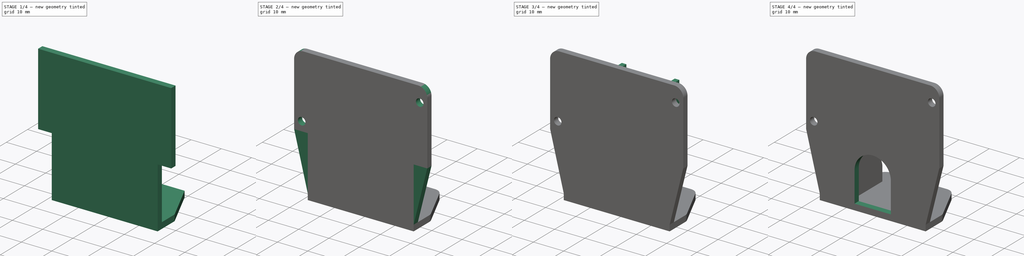
[diagram: build sequence overview — one tinted view per stage of 4, left to right]
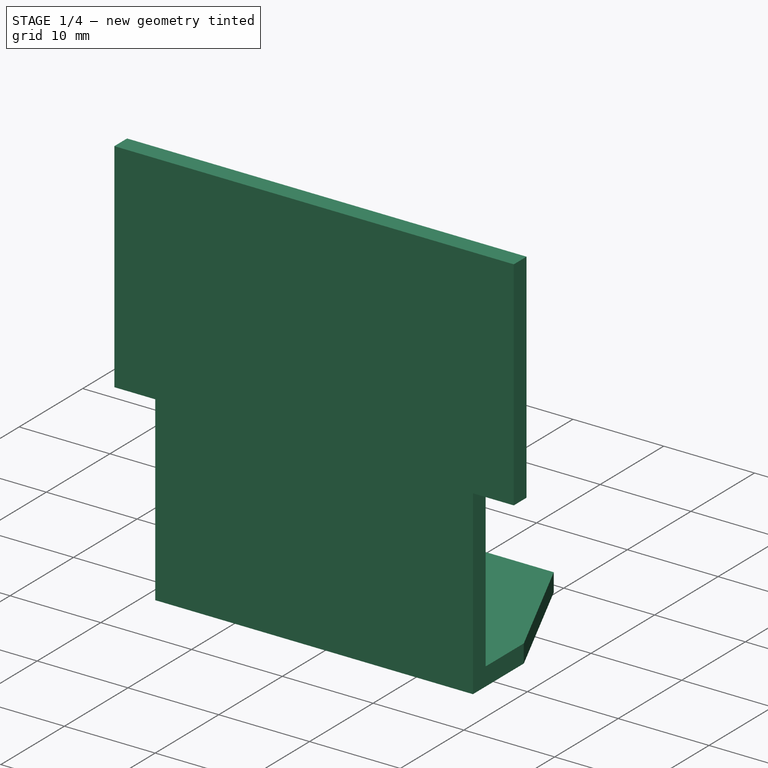
[diagram: stage 1 of 4 — iso view after this stage's code; geometry added in this stage tinted green]
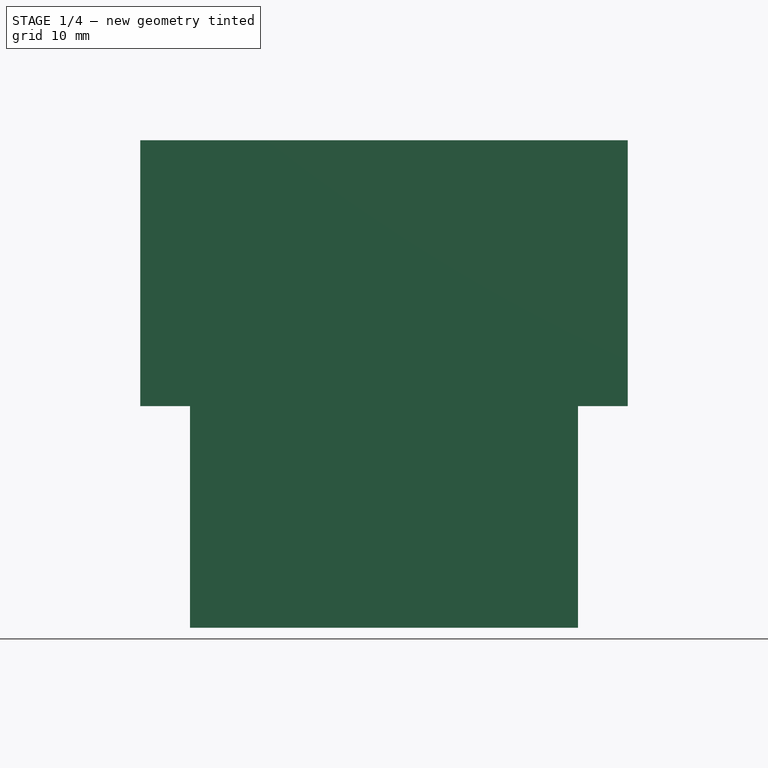
[diagram: stage 1 of 4 — front view after this stage's code; geometry added in this stage tinted green]
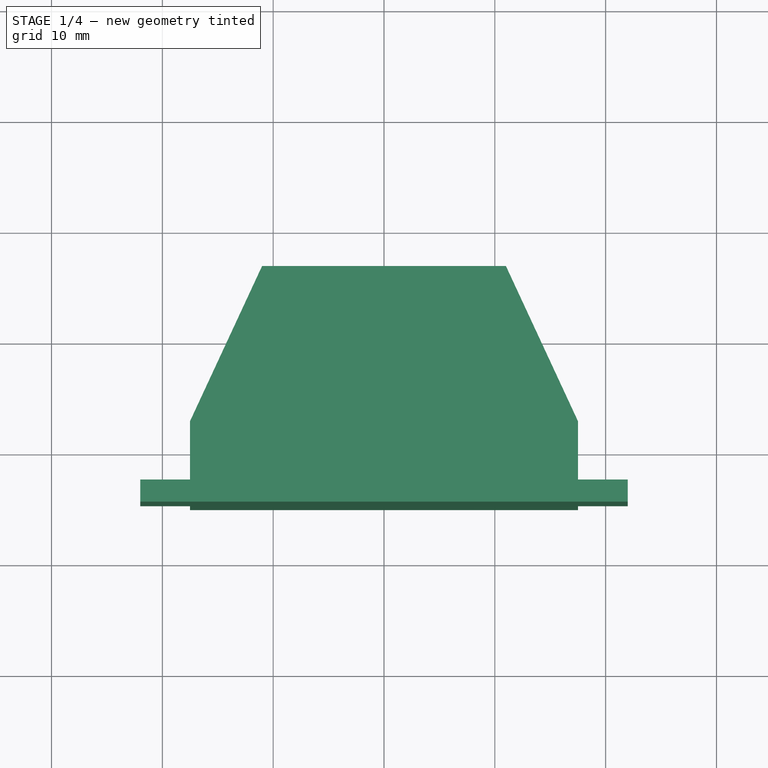
[diagram: stage 1 of 4 — top view after this stage's code; geometry added in this stage tinted green]
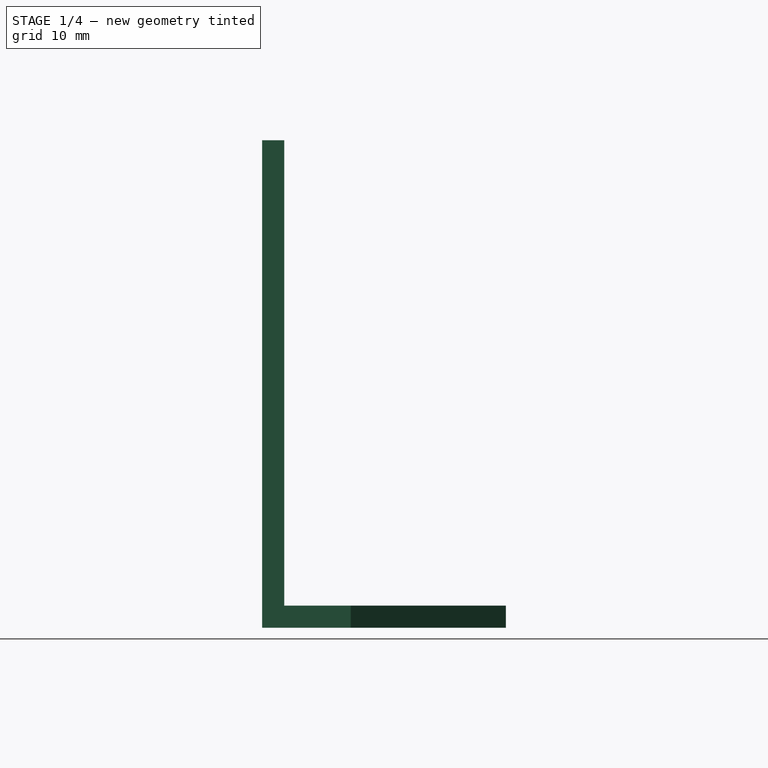
[diagram: stage 1 of 4 — right view after this stage's code; geometry added in this stage tinted green]
FCSTD DOCUMENT  (FreeCAD 0.21R33771 (Git))
Label: support_ultrasons-v1
License: All rights reserved
LicenseURL: http://en.wikipedia.org/wiki/All_rights_reserved
objects: Sketcher::SketchObject×7, PartDesign::Pad×4, PartDesign::Pocket×3, PartDesign::Chamfer×2, PartDesign::Fillet×2, PartDesign::Body×1
note: 30 computed .brp shape members not serialized (recipe doc carries the construction recipe); baked Part::Feature solids carry a one-line shape summary decoded from their .brp

FEATURE [Sketcher::SketchObject] Sketch
  FullyConstrained = true
  MapMode = 5
  Support = -> [XY_Plane]
  sketch-geometry (6):
    g0: LineSegment StartX=-17.5 StartY=-15 StartZ=0 EndX=17.5 EndY=-15 EndZ=0
    g1: LineSegment StartX=17.5 StartY=-15 StartZ=0 EndX=17.5 EndY=-7 EndZ=0
    g2: LineSegment StartX=17.5 StartY=-7 StartZ=0 EndX=11 EndY=7 EndZ=0
    g3: LineSegment StartX=11 StartY=7 StartZ=0 EndX=-11 EndY=7 EndZ=0
    g4: LineSegment StartX=-17.5 StartY=-7 StartZ=0 EndX=-17.5 EndY=-15 EndZ=0
    g5: LineSegment StartX=-11 StartY=7 StartZ=0 EndX=-17.5 EndY=-7 EndZ=0
  constraints (18):
    c: Horizontal(g0)
    c: Coincident(g1,g0)
    c: Vertical(g1)
    c: Coincident(g2,g1)
    c: Coincident(g3,g2)
    c: Horizontal(g3)
    c: Coincident(g4,g0)
    c: Vertical(g4)
    c: Coincident(g5,g3)
    c: Coincident(g5,g4)
    c: DistanceY(g0,g2) = 22
    c: DistanceX(g3,g3) = 22
    c: DistanceX(g0,g0) = 35
    c: Equal(g2,g5)
    c: Equal(g1,g4)
    c: DistanceY(g1,g1) = 8
    c: DistanceX(g-1,g0) = 17.5
    c: DistanceY(g0,g-1) = 15
FEATURE [PartDesign::Pad] Pad
  Direction = (0,0,1)
  Length = 2
  Length2 = 10
  Profile = -> Sketch
  ReferenceAxis = -> Sketch [N_Axis]
  Type = 0
FEATURE [Sketcher::SketchObject] Sketch001
  ExternalGeometry = -> [Pad]
  FullyConstrained = true
  MapMode = 5
  Placement = pos=(0,0,2) rot=(0,0,1;0rad)
  Support = -> [Pad]
  sketch-geometry (4):
    g0: LineSegment StartX=-17.5 StartY=-15 StartZ=0 EndX=17.5 EndY=-15 EndZ=0
    g1: LineSegment StartX=17.5 StartY=-15 StartZ=0 EndX=17.5 EndY=-13 EndZ=0
    g2: LineSegment StartX=17.5 StartY=-13 StartZ=0 EndX=-17.5 EndY=-13 EndZ=0
    g3: LineSegment StartX=-17.5 StartY=-13 StartZ=0 EndX=-17.5 EndY=-15 EndZ=0
  constraints (11):
    c: Coincident(g0,g1)
    c: Coincident(g1,g2)
    c: Coincident(g2,g3)
    c: Coincident(g3,g0)
    c: Horizontal(g0)
    c: Horizontal(g2)
    c: Vertical(g1)
    c: Vertical(g3)
    c: Coincident(g0,g-3)
    c: DistanceY(g1,g1) = 2
    c: DistanceX(g2,g2) = 35
FEATURE [PartDesign::Pad] Pad001
  BaseFeature = -> Pad
  Direction = (0,0,1)
  Length = 18
  Length2 = 10
  Profile = -> Sketch001
  ReferenceAxis = -> Sketch001 [N_Axis]
  Type = 0
FEATURE [Sketcher::SketchObject] Sketch002
  ExternalGeometry = -> [Pad001]
  FullyConstrained = false
  MapMode = 5
  Placement = pos=(0,0,20) rot=(0,0,1;0rad)
  Support = -> [Pad001]
  sketch-geometry (7):
    g0: LineSegment StartX=-22 StartY=-13 StartZ=0 EndX=22 EndY=-13 EndZ=0
    g1: LineSegment StartX=22 StartY=-13 StartZ=0 EndX=22 EndY=-15 EndZ=0
    g2: LineSegment StartX=22 StartY=-15 StartZ=0 EndX=-22 EndY=-15 EndZ=0
    g3: LineSegment StartX=-22 StartY=-15 StartZ=0 EndX=-22 EndY=-13 EndZ=0
    g4: LineSegment StartX=-22 StartY=-13 StartZ=0 EndX=-17.5 EndY=-13 EndZ=0
    g5: LineSegment StartX=-22 StartY=-13 StartZ=0 EndX=-17.5 EndY=-15 EndZ=0
    g6: LineSegment StartX=22 StartY=-13 StartZ=0 EndX=17.5 EndY=-15 EndZ=0
  constraints (17):
    c: Coincident(g0,g1)
    c: Coincident(g1,g2)
    c: Coincident(g2,g3)
    c: Coincident(g3,g0)
    c: Horizontal(g0)
    c: Horizontal(g2)
    c: Vertical(g1)
    c: Vertical(g3)
    c: PointOnObject(g-4,g2)
    c: PointOnObject(g-3,g0)
    c: DistanceX(g2,g2) = 44
    c: Coincident(g4,g0)
    c: Coincident(g5,g0)
    c: Coincident(g5,g-4)
    c: Coincident(g6,g0)
    c: Coincident(g6,g-4)
    c: Equal(g6,g5)
FEATURE [PartDesign::Pad] Pad002
  BaseFeature = -> Pad001
  Direction = (0,0,1)
  Length = 24
  Length2 = 10
  Profile = -> Sketch002
  ReferenceAxis = -> Sketch002 [N_Axis]
  Type = 0
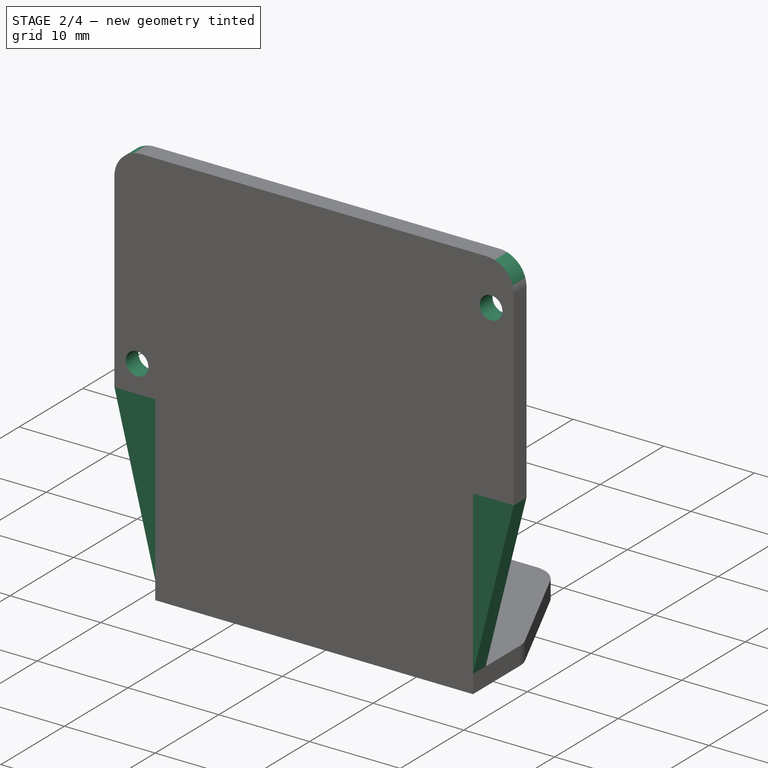
[diagram: stage 2 of 4 — iso view after this stage's code; geometry added in this stage tinted green]
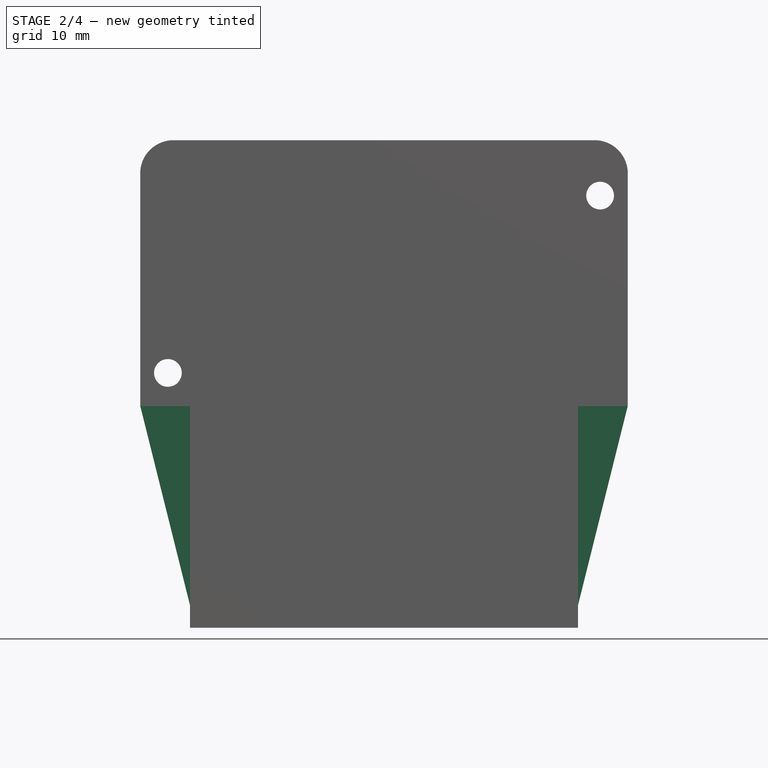
[diagram: stage 2 of 4 — front view after this stage's code; geometry added in this stage tinted green]
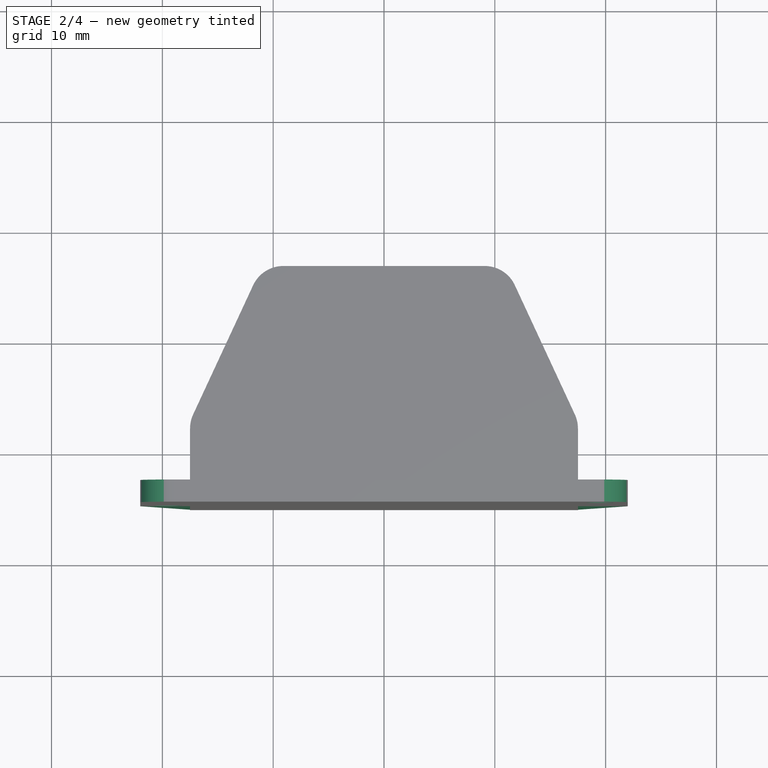
[diagram: stage 2 of 4 — top view after this stage's code; geometry added in this stage tinted green]
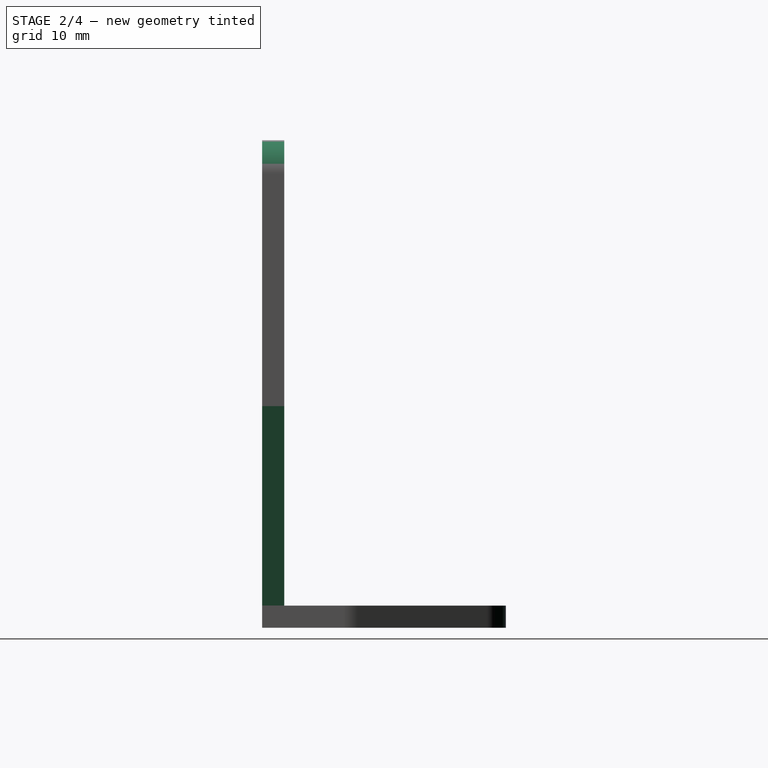
[diagram: stage 2 of 4 — right view after this stage's code; geometry added in this stage tinted green]
FEATURE [PartDesign::Chamfer] Chamfer
  Angle = 45
  Base = -> Pad002 [Edge13,Edge19]
  BaseFeature = -> Pad002
  ChamferType = 1
  FlipDirection = false
  Size = 4.49
  Size2 = 17.99
  SupportTransform = false
  UseAllEdges = false
FEATURE [PartDesign::Fillet] Fillet
  Base = -> Chamfer [Edge19,Edge43,Edge50,Edge48,Edge45,Edge18]
  BaseFeature = -> Chamfer
  Radius = 3
  SupportTransform = false
  UseAllEdges = false
FEATURE [Sketcher::SketchObject] Sketch003
  ExternalGeometry = -> [Fillet]
  FullyConstrained = true
  MapMode = 5
  Placement = pos=(0,-13,0) rot=(0,0.707107,0.707107;3.14159rad)
  Support = -> [Fillet]
  sketch-geometry (2):
    g0: Circle CenterX=-19.5 CenterY=39 CenterZ=0 NormalX=0 NormalY=0 NormalZ=1 AngleXU=0 Radius=1.25
    g1: Circle CenterX=19.5 CenterY=23 CenterZ=0 NormalX=0 NormalY=0 NormalZ=1 AngleXU=0 Radius=1.25
  constraints (6):
    c: Equal(g1,g0)
    c: DistanceX(g0,g1) = 39
    c: DistanceY(g1,g0) = 16
    c: Diameter(g1) = 2.5
    c: DistanceX(g-1,g1) = 19.5
    c: DistanceY(g-1,g0) = 39
FEATURE [PartDesign::Pocket] Pocket
  BaseFeature = -> Fillet
  Direction = (0,-1,2e-16)
  Length = 5
  Length2 = 5
  Profile = -> Sketch003
  ReferenceAxis = -> Sketch003 [N_Axis]
  Type = 0
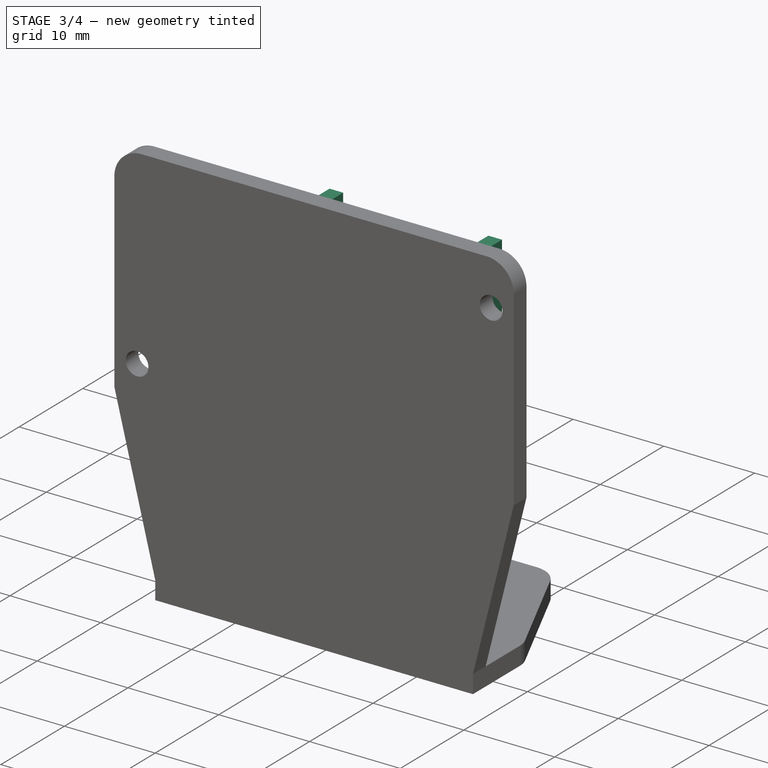
[diagram: stage 3 of 4 — iso view after this stage's code; geometry added in this stage tinted green]
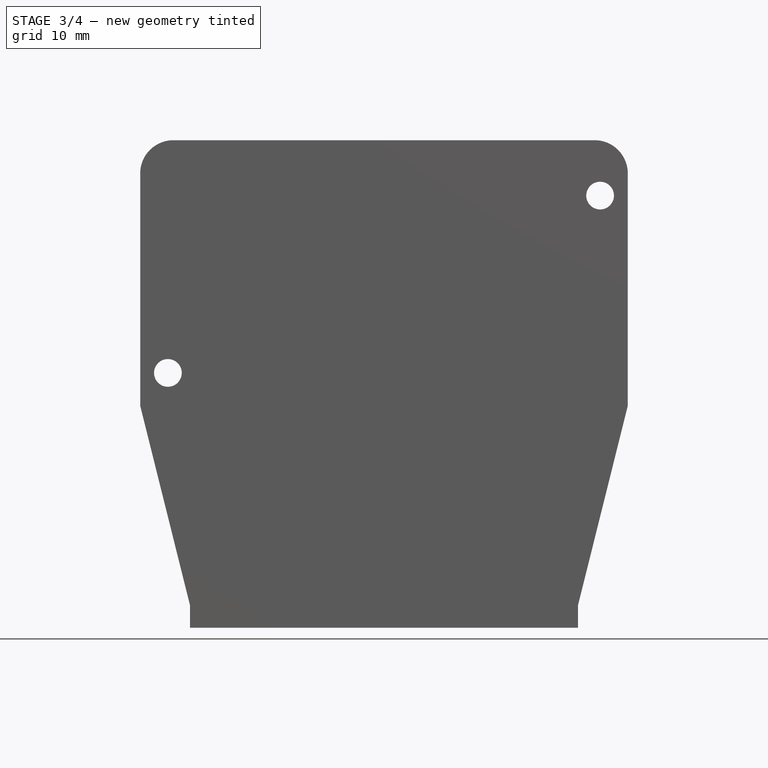
[diagram: stage 3 of 4 — front view after this stage's code; geometry added in this stage tinted green]
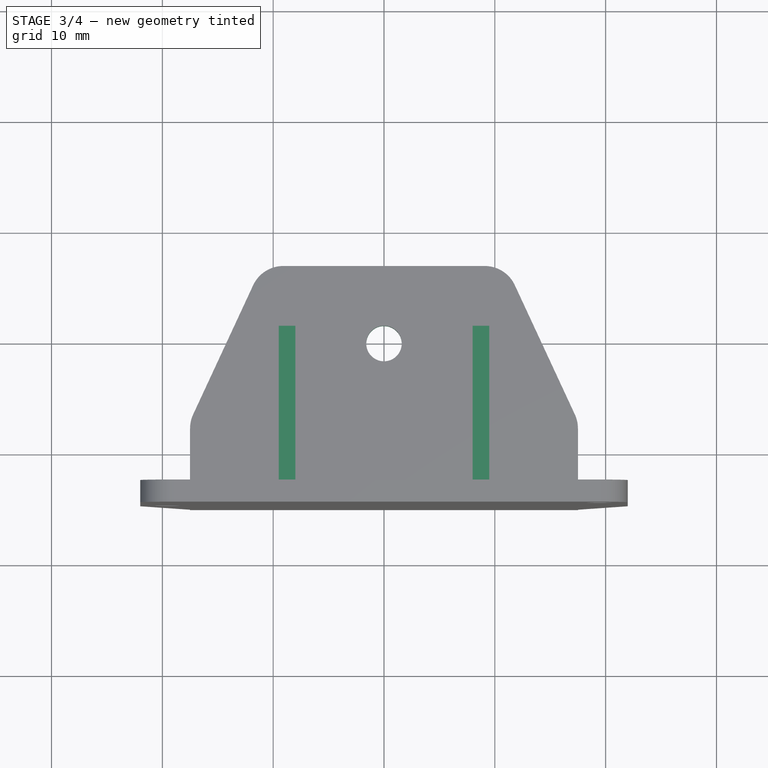
[diagram: stage 3 of 4 — top view after this stage's code; geometry added in this stage tinted green]
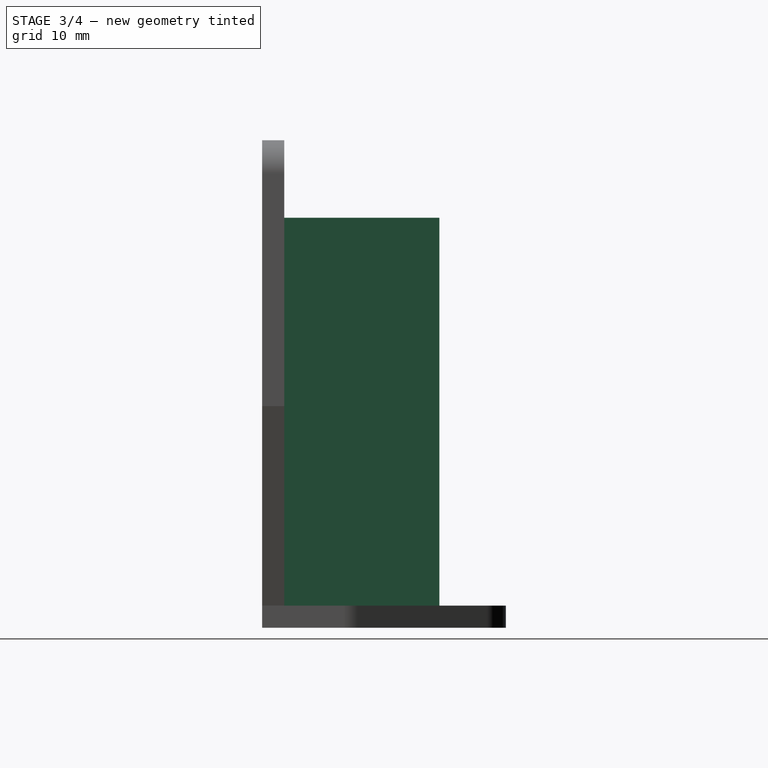
[diagram: stage 3 of 4 — right view after this stage's code; geometry added in this stage tinted green]
FEATURE [Sketcher::SketchObject] Sketch004
  ExternalGeometry = -> [Pocket]
  FullyConstrained = true
  MapMode = 5
  Placement = pos=(0,0,2) rot=(0,0,1;0rad)
  Support = -> [Pocket]
  sketch-geometry (1):
    g0: Circle CenterX=0 CenterY=0 CenterZ=0 NormalX=0 NormalY=0 NormalZ=1 AngleXU=0 Radius=1.6
  constraints (2):
    c: Coincident(g0,g-1)
    c: Diameter(g0) = 3.2
FEATURE [PartDesign::Pocket] Pocket001
  BaseFeature = -> Pocket
  Direction = (0,0,-1)
  Length = 5
  Length2 = 5
  Profile = -> Sketch004
  ReferenceAxis = -> Sketch004 [N_Axis]
  Type = 0
FEATURE [Sketcher::SketchObject] Sketch005
  ExternalGeometry = -> [Pocket001]
  FullyConstrained = true
  MapMode = 5
  Placement = pos=(0,0,2) rot=(0,0,1;0rad)
  Support = -> [Pocket001]
  sketch-geometry (8):
    g0: LineSegment StartX=-9.5 StartY=-13 StartZ=0 EndX=-8 EndY=-13 EndZ=0
    g1: LineSegment StartX=-8 StartY=-13 StartZ=0 EndX=-8 EndY=1 EndZ=0
    g2: LineSegment StartX=-8 StartY=1 StartZ=0 EndX=-9.5 EndY=1 EndZ=0
    g3: LineSegment StartX=-9.5 StartY=1 StartZ=0 EndX=-9.5 EndY=-13 EndZ=0
    g4: LineSegment StartX=8 StartY=-13 StartZ=0 EndX=9.5 EndY=-13 EndZ=0
    g5: LineSegment StartX=9.5 StartY=-13 StartZ=0 EndX=9.5 EndY=1 EndZ=0
    g6: LineSegment StartX=9.5 StartY=1 StartZ=0 EndX=8 EndY=1 EndZ=0
    g7: LineSegment StartX=8 StartY=1 StartZ=0 EndX=8 EndY=-13 EndZ=0
  constraints (23):
    c: Coincident(g0,g1)
    c: Coincident(g1,g2)
    c: Coincident(g2,g3)
    c: Coincident(g3,g0)
    c: Horizontal(g0)
    c: Horizontal(g2)
    c: Vertical(g1)
    c: Vertical(g3)
    c: PointOnObject(g0,g-3)
    c: Coincident(g4,g5)
    c: Coincident(g5,g6)
    c: Coincident(g6,g7)
    c: Coincident(g7,g4)
    c: Horizontal(g4)
    c: Horizontal(g6)
    c: Vertical(g5)
    c: Vertical(g7)
    c: PointOnObject(g4,g-3)
    c: Symmetric(g6,g1,g-2)
    c: Equal(g6,g2)
    c: DistanceX(g-1,g6) = 8
    c: DistanceX(g6,g6) = 1.5
    c: DistanceY(g5,g5) = 14
FEATURE [PartDesign::Pad] Pad003
  BaseFeature = -> Pocket001
  Direction = (0,0,1)
  Length = 35
  Length2 = 10
  Profile = -> Sketch005
  ReferenceAxis = -> Sketch005 [N_Axis]
  Type = 0
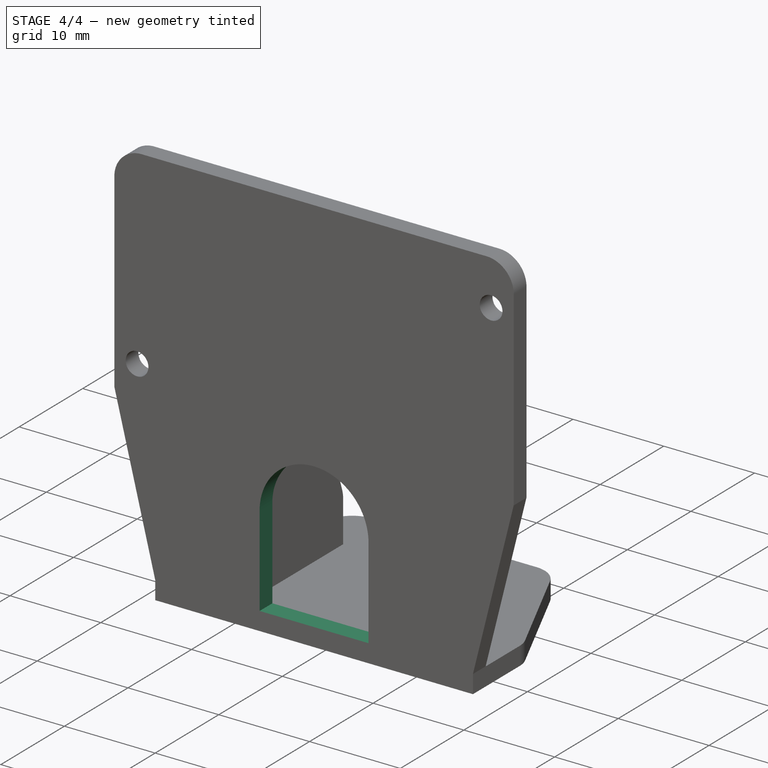
[diagram: stage 4 of 4 — iso view after this stage's code; geometry added in this stage tinted green]
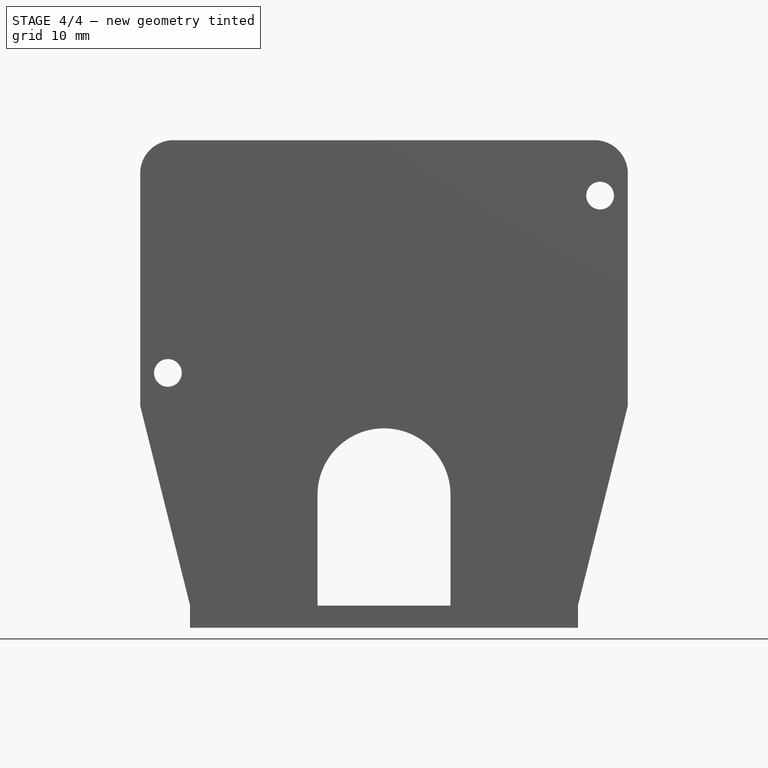
[diagram: stage 4 of 4 — front view after this stage's code; geometry added in this stage tinted green]
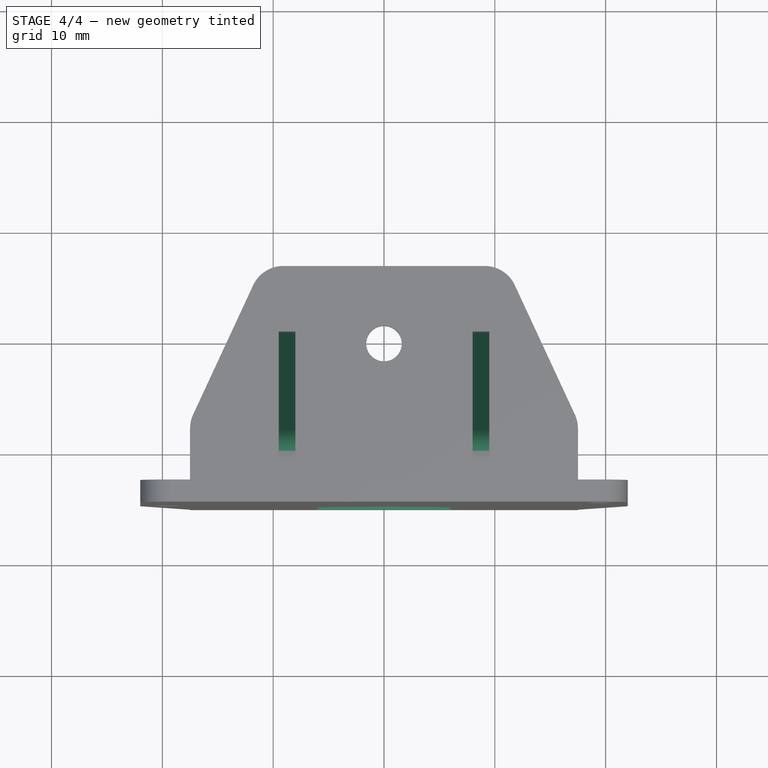
[diagram: stage 4 of 4 — top view after this stage's code; geometry added in this stage tinted green]
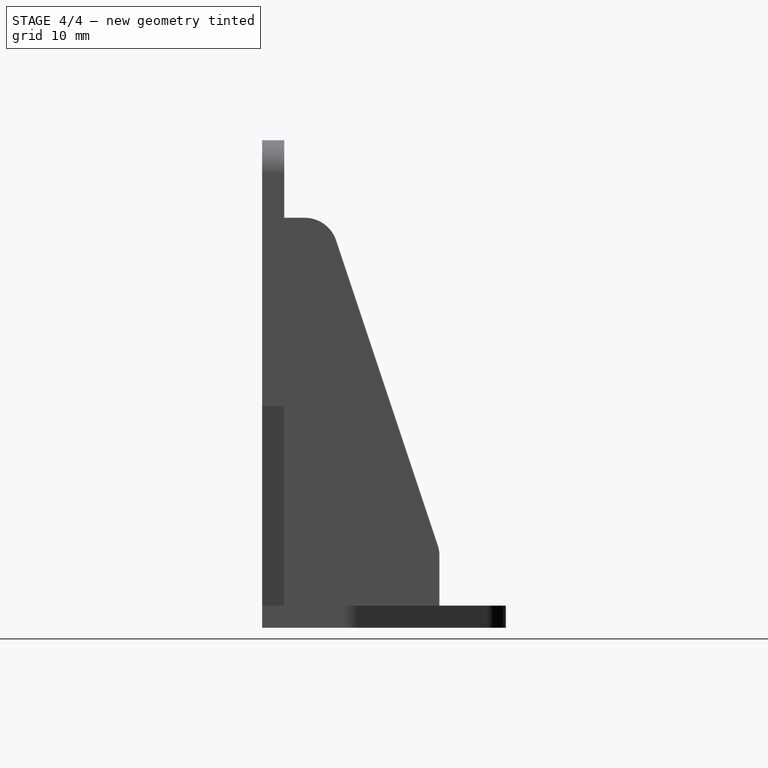
[diagram: stage 4 of 4 — right view after this stage's code; geometry added in this stage tinted green]
FEATURE [PartDesign::Chamfer] Chamfer001
  Angle = 45
  Base = -> Pad003 [Edge34,Edge44]
  BaseFeature = -> Pad003
  ChamferType = 1
  FlipDirection = false
  Size = 10
  Size2 = 30
  SupportTransform = false
  UseAllEdges = false
FEATURE [PartDesign::Fillet] Fillet001
  Base = -> Chamfer001 [Edge94,Edge11,Edge8,Edge76]
  BaseFeature = -> Chamfer001
  Radius = 3
  SupportTransform = false
  UseAllEdges = false
FEATURE [Sketcher::SketchObject] Sketch006
  ExternalGeometry = -> [Fillet001]
  FullyConstrained = true
  MapMode = 5
  Placement = pos=(0,-13,0) rot=(0,0.707107,0.707107;3.14159rad)
  Support = -> [Fillet001]
  sketch-geometry (4):
    g0: LineSegment StartX=-6 StartY=2 StartZ=0 EndX=-6 EndY=12 EndZ=0
    g1: LineSegment StartX=6 StartY=2 StartZ=0 EndX=6 EndY=12 EndZ=0
    g2: ArcOfCircle CenterX=-3e-16 CenterY=12 CenterZ=0 NormalX=0 NormalY=0 NormalZ=1 AngleXU=0 Radius=6 StartAngle=0 EndAngle=3.14159
    g3: LineSegment StartX=-6 StartY=2 StartZ=0 EndX=6 EndY=2 EndZ=0
  constraints (12):
    c: PointOnObject(g0,g-3)
    c: Vertical(g0)
    c: PointOnObject(g1,g-3)
    c: Vertical(g1)
    c: Symmetric(g1,g0,g-2)
    c: DistanceY(g1,g1) = 10
    c: Coincident(g2,g0)
    c: Coincident(g2,g1)
    c: Horizontal(g2,g1)
    c: Coincident(g3,g0)
    c: Coincident(g3,g1)
    c: DistanceX(g0,g1) = 12
FEATURE [PartDesign::Pocket] Pocket002
  BaseFeature = -> Fillet001
  Direction = (0,-1,2e-16)
  Length = 5
  Length2 = 5
  Profile = -> Sketch006
  ReferenceAxis = -> Sketch006 [N_Axis]
  Type = 0
FEATURE [PartDesign::Body] Body  label="support-ultrasons"
  Group = -> [Sketch,Pad,Sketch001,Pad001,Sketch002,Pad002,Chamfer,Fillet,Sketch003,Pocket,Sketch004,Pocket001,Sketch005,Pad003,Chamfer001,Fillet001,Sketch006,Pocket002]
  Origin = -> Origin
  Tip = -> Pocket002
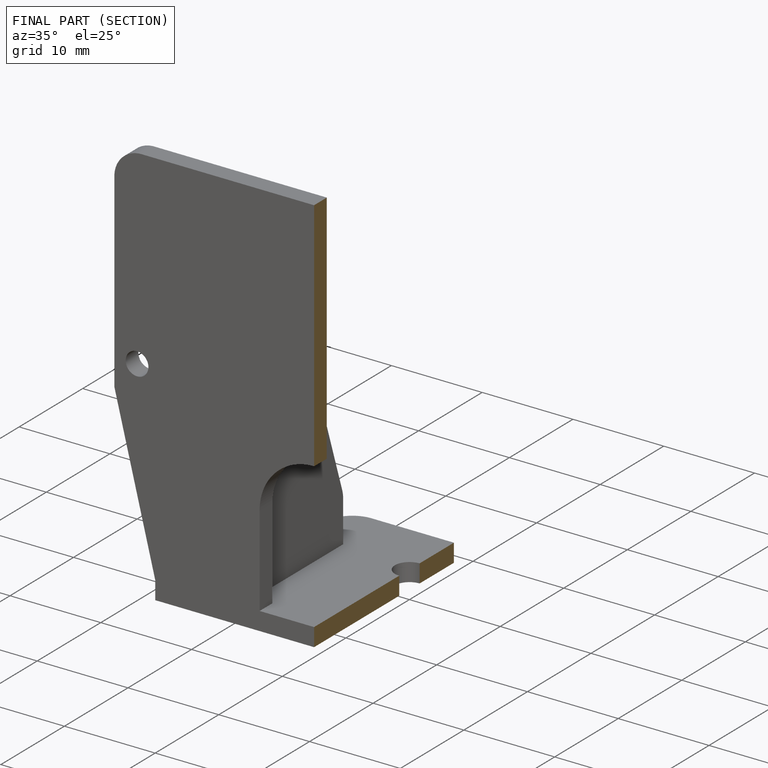
[diagram: finished part — half-section view (interior)]
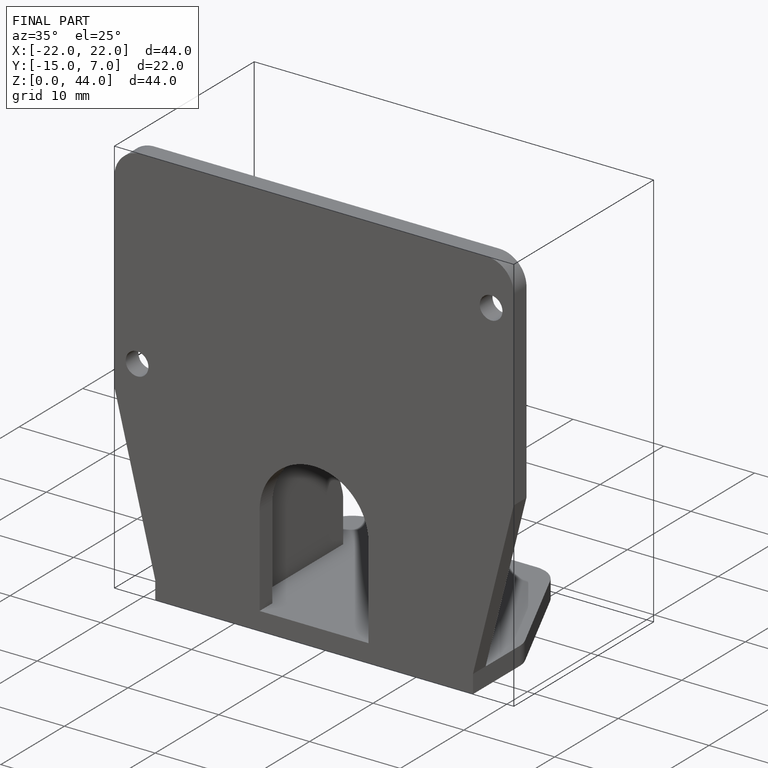
[diagram: finished part — iso view with bounding-box wireframe]
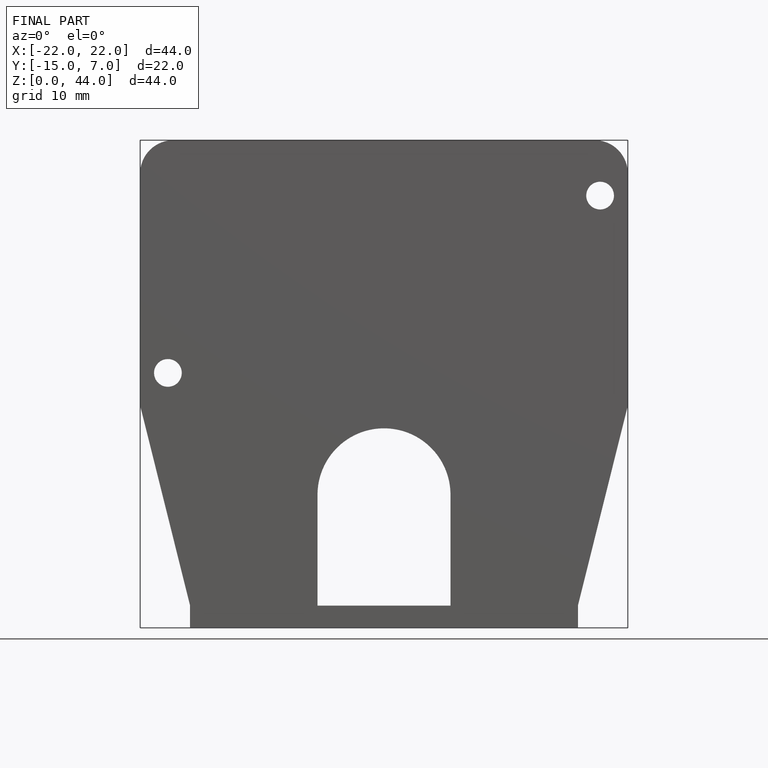
[diagram: finished part — front view with bounding-box wireframe]
